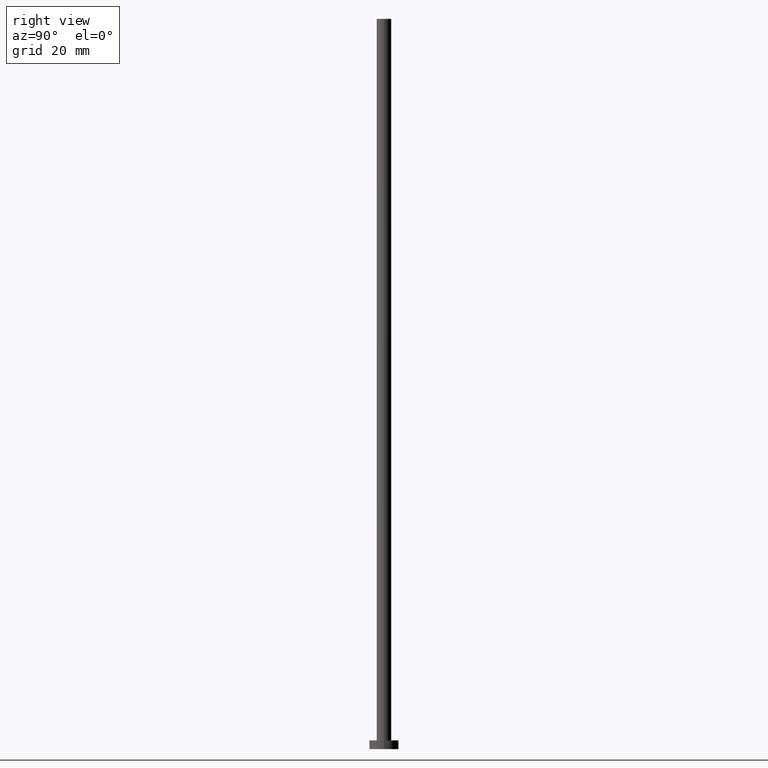
[diagram: clean part render]
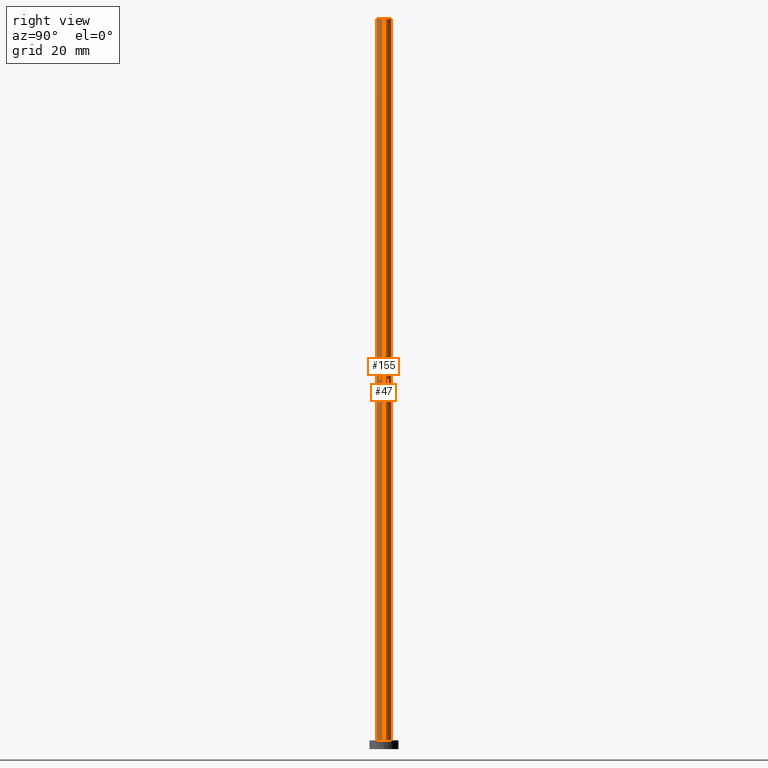
[diagram: same view with one multi-face feature highlighted, each face labeled with its STEP entity id]
A machine part, right view. The highlighted faces form ONE feature: a constant-radius fillet chain: 2 tangent blend faces with common blend radius 2.5 mm. The faces share edges in the B-rep.
Their STEP definitions:
[1] entity #47 (Cylinder):
#4 = DIRECTION ( 'NONE',  ( 1.000000000000000000, 0.000000000000000000, 0.000000000000000000 ) ) ;
#16 = CARTESIAN_POINT ( 'NONE',  ( 0.000000000000000000, 0.000000000000000000, 250.0000000000000000 ) ) ;
#20 = DIRECTION ( 'NONE',  ( 1.000000000000000000, 0.000000000000000000, 0.000000000000000000 ) ) ;
#30 = VERTEX_POINT ( 'NONE', #252 ) ;
#37 = CARTESIAN_POINT ( 'NONE',  ( 0.000000000000000000, 0.000000000000000000, 3.000000000000000000 ) ) ;
#46 = ORIENTED_EDGE ( 'NONE', *, *, #112, .F. ) ;
#47 = ADVANCED_FACE ( 'NONE', ( #66 ), #110, .T. ) ;
#48 = ORIENTED_EDGE ( 'NONE', *, *, #139, .F. ) ;
#52 = AXIS2_PLACEMENT_3D ( 'NONE', #16, #94, #224 ) ;
#55 = DIRECTION ( 'NONE',  ( -0.000000000000000000, -0.000000000000000000, -1.000000000000000000 ) ) ;
#56 = CARTESIAN_POINT ( 'NONE',  ( 2.500000000000000000, 3.061616997868383141E-16, 250.0000000000000000 ) ) ;
#66 = FACE_OUTER_BOUND ( 'NONE', #217, .T. ) ;
#67 = VERTEX_POINT ( 'NONE', #221 ) ;
#76 = LINE ( 'NONE', #56, #113 ) ;
#89 = CARTESIAN_POINT ( 'NONE',  ( 2.500000000000000000, 3.061616997868383141E-16, 250.0000000000000000 ) ) ;
#94 = DIRECTION ( 'NONE',  ( -0.000000000000000000, -0.000000000000000000, -1.000000000000000000 ) ) ;
#110 = CYLINDRICAL_SURFACE ( 'NONE', #52, 2.500000000000000000 ) ;
#112 = EDGE_CURVE ( 'NONE', #67, #228, #114, .T. ) ;
#113 = VECTOR ( 'NONE', #55, 1000.000000000000000 ) ;
#114 = LINE ( 'NONE', #244, #161 ) ;
#130 = ORIENTED_EDGE ( 'NONE', *, *, #142, .T. ) ;
#139 = EDGE_CURVE ( 'NONE', #251, #67, #200, .T. ) ;
#142 = EDGE_CURVE ( 'NONE', #251, #30, #76, .T. ) ;
#150 = ORIENTED_EDGE ( 'NONE', *, *, #183, .T. ) ;
#161 = VECTOR ( 'NONE', #241, 1000.000000000000000 ) ;
#180 = DIRECTION ( 'NONE',  ( 0.000000000000000000, 0.000000000000000000, 1.000000000000000000 ) ) ;
#183 = EDGE_CURVE ( 'NONE', #30, #228, #199, .T. ) ;
#199 = CIRCLE ( 'NONE', #248, 2.500000000000000000 ) ;
#200 = CIRCLE ( 'NONE', #231, 2.500000000000000000 ) ;
#217 = EDGE_LOOP ( 'NONE', ( #48, #130, #150, #46 ) ) ;
#219 = CARTESIAN_POINT ( 'NONE',  ( -2.500000000000000000, 0.000000000000000000, 3.000000000000000000 ) ) ;
#221 = CARTESIAN_POINT ( 'NONE',  ( -2.500000000000000000, 0.000000000000000000, 250.0000000000000000 ) ) ;
#223 = DIRECTION ( 'NONE',  ( 0.000000000000000000, 0.000000000000000000, 1.000000000000000000 ) ) ;
#224 = DIRECTION ( 'NONE',  ( -1.000000000000000000, 0.000000000000000000, 0.000000000000000000 ) ) ;
#228 = VERTEX_POINT ( 'NONE', #219 ) ;
#231 = AXIS2_PLACEMENT_3D ( 'NONE', #236, #180, #20 ) ;
#236 = CARTESIAN_POINT ( 'NONE',  ( 0.000000000000000000, 0.000000000000000000, 250.0000000000000000 ) ) ;
#241 = DIRECTION ( 'NONE',  ( -0.000000000000000000, -0.000000000000000000, -1.000000000000000000 ) ) ;
#244 = CARTESIAN_POINT ( 'NONE',  ( -2.500000000000000000, 0.000000000000000000, 250.0000000000000000 ) ) ;
#248 = AXIS2_PLACEMENT_3D ( 'NONE', #37, #223, #4 ) ;
#251 = VERTEX_POINT ( 'NONE', #89 ) ;
#252 = CARTESIAN_POINT ( 'NONE',  ( 2.500000000000000000, 3.061616997868383141E-16, 3.000000000000000000 ) ) ;
[2] entity #155 (Cylinder):
#3 = FACE_OUTER_BOUND ( 'NONE', #27, .T. ) ;
#5 = EDGE_CURVE ( 'NONE', #228, #30, #32, .T. ) ;
#12 = DIRECTION ( 'NONE',  ( 0.000000000000000000, 0.000000000000000000, 1.000000000000000000 ) ) ;
#15 = DIRECTION ( 'NONE',  ( 1.000000000000000000, 0.000000000000000000, 0.000000000000000000 ) ) ;
#22 = AXIS2_PLACEMENT_3D ( 'NONE', #117, #140, #159 ) ;
#27 = EDGE_LOOP ( 'NONE', ( #69, #215, #145, #33 ) ) ;
#30 = VERTEX_POINT ( 'NONE', #252 ) ;
#32 = CIRCLE ( 'NONE', #82, 2.500000000000000000 ) ;
#33 = ORIENTED_EDGE ( 'NONE', *, *, #5, .T. ) ;
#55 = DIRECTION ( 'NONE',  ( -0.000000000000000000, -0.000000000000000000, -1.000000000000000000 ) ) ;
#56 = CARTESIAN_POINT ( 'NONE',  ( 2.500000000000000000, 3.061616997868383141E-16, 250.0000000000000000 ) ) ;
#67 = VERTEX_POINT ( 'NONE', #221 ) ;
#69 = ORIENTED_EDGE ( 'NONE', *, *, #142, .F. ) ;
#74 = DIRECTION ( 'NONE',  ( -1.000000000000000000, 0.000000000000000000, 0.000000000000000000 ) ) ;
#75 = DIRECTION ( 'NONE',  ( -0.000000000000000000, -0.000000000000000000, -1.000000000000000000 ) ) ;
#76 = LINE ( 'NONE', #56, #113 ) ;
#82 = AXIS2_PLACEMENT_3D ( 'NONE', #128, #12, #15 ) ;
#89 = CARTESIAN_POINT ( 'NONE',  ( 2.500000000000000000, 3.061616997868383141E-16, 250.0000000000000000 ) ) ;
#100 = AXIS2_PLACEMENT_3D ( 'NONE', #173, #75, #74 ) ;
#112 = EDGE_CURVE ( 'NONE', #67, #228, #114, .T. ) ;
#113 = VECTOR ( 'NONE', #55, 1000.000000000000000 ) ;
#114 = LINE ( 'NONE', #244, #161 ) ;
#117 = CARTESIAN_POINT ( 'NONE',  ( 0.000000000000000000, 0.000000000000000000, 250.0000000000000000 ) ) ;
#128 = CARTESIAN_POINT ( 'NONE',  ( 0.000000000000000000, 0.000000000000000000, 3.000000000000000000 ) ) ;
#131 = CYLINDRICAL_SURFACE ( 'NONE', #100, 2.500000000000000000 ) ;
#132 = CIRCLE ( 'NONE', #22, 2.500000000000000000 ) ;
#140 = DIRECTION ( 'NONE',  ( 0.000000000000000000, 0.000000000000000000, 1.000000000000000000 ) ) ;
#142 = EDGE_CURVE ( 'NONE', #251, #30, #76, .T. ) ;
#145 = ORIENTED_EDGE ( 'NONE', *, *, #112, .T. ) ;
#155 = ADVANCED_FACE ( 'NONE', ( #3 ), #131, .T. ) ;
#159 = DIRECTION ( 'NONE',  ( 1.000000000000000000, 0.000000000000000000, 0.000000000000000000 ) ) ;
#161 = VECTOR ( 'NONE', #241, 1000.000000000000000 ) ;
#173 = CARTESIAN_POINT ( 'NONE',  ( 0.000000000000000000, 0.000000000000000000, 250.0000000000000000 ) ) ;
#215 = ORIENTED_EDGE ( 'NONE', *, *, #216, .F. ) ;
#216 = EDGE_CURVE ( 'NONE', #67, #251, #132, .T. ) ;
#219 = CARTESIAN_POINT ( 'NONE',  ( -2.500000000000000000, 0.000000000000000000, 3.000000000000000000 ) ) ;
#221 = CARTESIAN_POINT ( 'NONE',  ( -2.500000000000000000, 0.000000000000000000, 250.0000000000000000 ) ) ;
#228 = VERTEX_POINT ( 'NONE', #219 ) ;
#241 = DIRECTION ( 'NONE',  ( -0.000000000000000000, -0.000000000000000000, -1.000000000000000000 ) ) ;
#244 = CARTESIAN_POINT ( 'NONE',  ( -2.500000000000000000, 0.000000000000000000, 250.0000000000000000 ) ) ;
#251 = VERTEX_POINT ( 'NONE', #89 ) ;
#252 = CARTESIAN_POINT ( 'NONE',  ( 2.500000000000000000, 3.061616997868383141E-16, 3.000000000000000000 ) ) ;